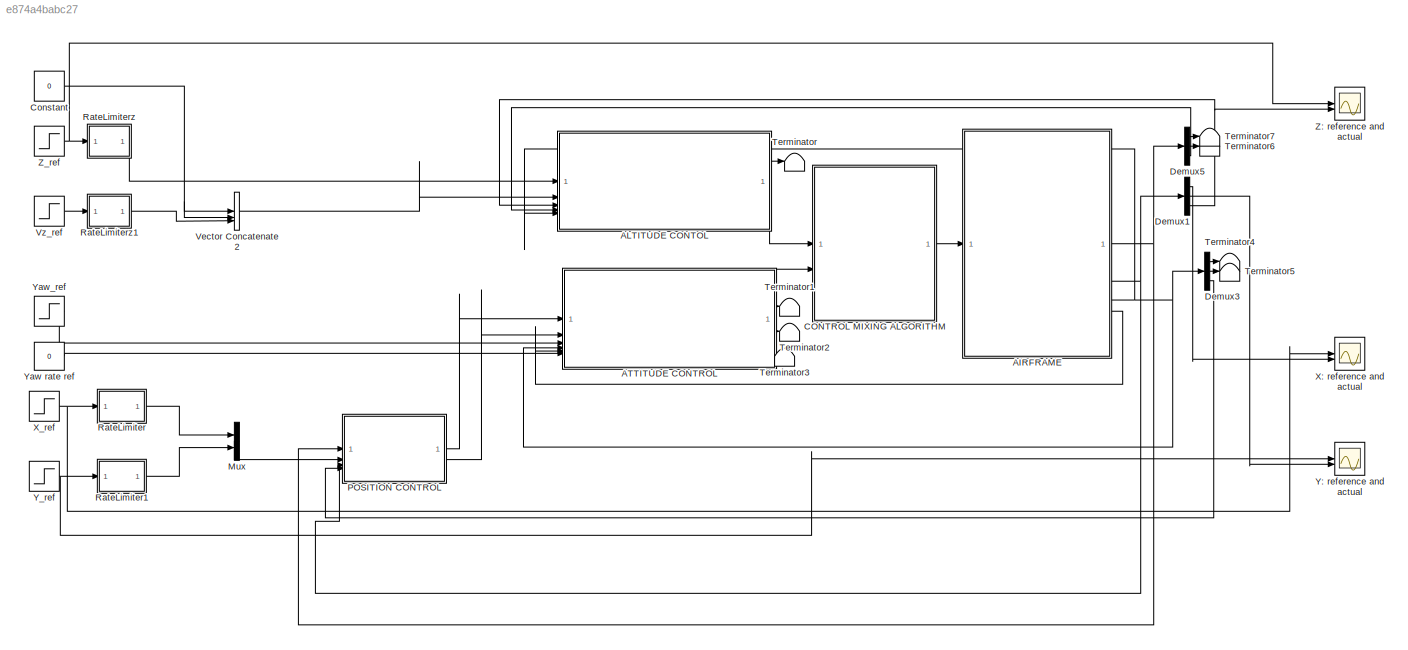
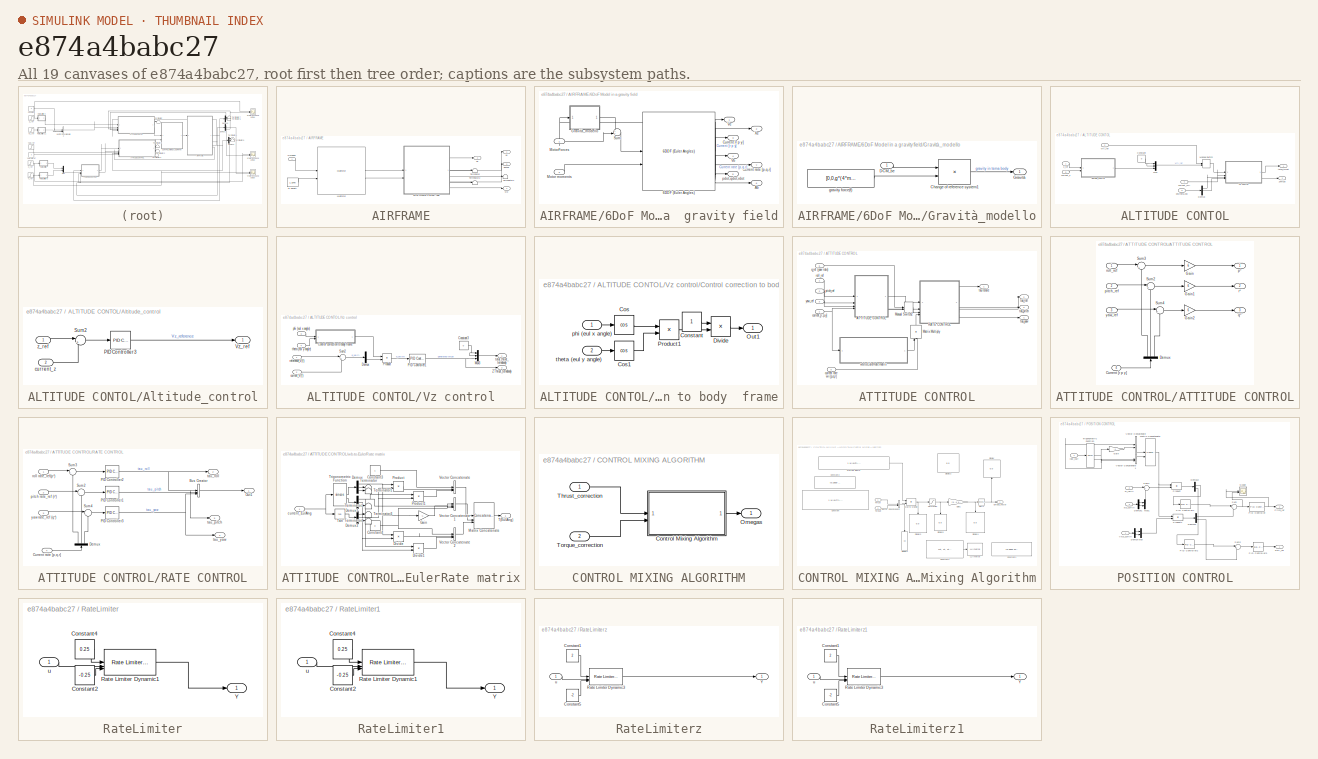
[diagram: thumbnail index - all 19 canvases of the model, root first then tree order]
MODEL slx_e874a4babc27
KIND model
CONFIG AbsTol = auto
CONFIG EnableMultiTasking = off
CONFIG FixedStep = auto
CONFIG MaxStep = 1e-2
CONFIG MinStep = auto
CONFIG RelTol = 1e-6
CONFIG SampleTimeConstraint = Unconstrained
CONFIG SolverName = VariableStepAuto
CONFIG StartTime = 0.0
CONFIG StopTime = 10
BLOCK [SubSystem] AIRFRAME
BLOCK [SubSystem] AIRFRAME/6DoF Model in a  gravity field
BLOCK [Reference] AIRFRAME/6DoF Model in a  gravity field/6DOF (Euler Angles)  REF=shared6dof/6DOF (Euler Angles)
  SourceBlock = shared6dof/6DOF (Euler Angles)
  SourceType = 6DOF EoM (Body Axis)
BLOCK [Outport] AIRFRAME/6DoF Model in a  gravity field/Ab
  Port = 6
BLOCK [Outport] AIRFRAME/6DoF Model in a  gravity field/Current [r p y]
  Port = 3
BLOCK [Outport] AIRFRAME/6DoF Model in a  gravity field/Current rate [p,q,r]
  Port = 7
BLOCK [SubSystem] AIRFRAME/6DoF Model in a  gravity field/Gravità_modello
BLOCK [Product] AIRFRAME/6DoF Model in a  gravity field/Gravità_modello/Change of reference system1
  Multiplication = Matrix(*)
BLOCK [Inport] AIRFRAME/6DoF Model in a  gravity field/Gravità_modello/DCM_be
BLOCK [Outport] AIRFRAME/6DoF Model in a  gravity field/Gravità_modello/Gravità
BLOCK [Constant] AIRFRAME/6DoF Model in a  gravity field/Gravità_modello/gravity force(f)
  Value = [0,0,g*(4*m+m1+m2+m3+m4)]'
BLOCK [Inport] AIRFRAME/6DoF Model in a  gravity field/Motor moments
  Port = 2
BLOCK [Inport] AIRFRAME/6DoF Model in a  gravity field/MotorForces
BLOCK [Sum] AIRFRAME/6DoF Model in a  gravity field/Sum
  Inputs = ++|
BLOCK [Outport] AIRFRAME/6DoF Model in a  gravity field/Vb
  Port = 4
BLOCK [Outport] AIRFRAME/6DoF Model in a  gravity field/Ve
BLOCK [Outport] AIRFRAME/6DoF Model in a  gravity field/Xe
  Port = 2
BLOCK [Outport] AIRFRAME/6DoF Model in a  gravity field/pdot,qdot,rdot
  Port = 5
BLOCK [Constant] AIRFRAME/Air density
  Value = 1.1840
BLOCK [Outport] AIRFRAME/EulAng
  Port = 3
BLOCK [Reference] AIRFRAME/Multirotor  REF=aerolibpropulsion2/Multirotor
  LibrarySourceBlock = aerolibrotor/Rotor
  SourceBlock = aerolibpropulsion2/Multirotor
  SourceType = Multirotor
BLOCK [Inport] AIRFRAME/Omegas
BLOCK [Terminator] AIRFRAME/Terminator
BLOCK [Terminator] AIRFRAME/Terminator1
BLOCK [Terminator] AIRFRAME/Terminator2
BLOCK [Outport] AIRFRAME/Ve
BLOCK [Outport] AIRFRAME/Xe
  Port = 2
BLOCK [Outport] AIRFRAME/wb
  Port = 4
BLOCK [SubSystem] ALTITUDE CONTOL
BLOCK [SubSystem] ALTITUDE CONTOL/Altitude_control
BLOCK [Reference] ALTITUDE CONTOL/Altitude_control/PID Controller3  REF=slpidlib/PID Controller
  SourceBlock = slpidlib/PID Controller
  SourceType = PID 1dof
BLOCK [Sum] ALTITUDE CONTOL/Altitude_control/Sum2
  Inputs = |+-
BLOCK [Outport] ALTITUDE CONTOL/Altitude_control/Vz_ref
BLOCK [Inport] ALTITUDE CONTOL/Altitude_control/current_z
  Port = 2
BLOCK [Inport] ALTITUDE CONTOL/Altitude_control/z_ref
BLOCK [Constant] ALTITUDE CONTOL/Constant
  Value = 0
BLOCK [Demux] ALTITUDE CONTOL/Demux
  Outputs = 3
BLOCK [ManualSwitch] ALTITUDE CONTOL/Manual Switch
  CurrentSetting = 0
BLOCK [Mux] ALTITUDE CONTOL/Mux
  DisplayOption = bar
  Inputs = 3
BLOCK [Inport] ALTITUDE CONTOL/V(f)_ref
  Port = 2
BLOCK [SubSystem] ALTITUDE CONTOL/Vz control
BLOCK [Constant] ALTITUDE CONTOL/Vz control/Constant3
  Value = 0
BLOCK [SubSystem] ALTITUDE CONTOL/Vz control/Control correction to body  frame
BLOCK [Constant] ALTITUDE CONTOL/Vz control/Control correction to body  frame/Constant
BLOCK [Trigonometry] ALTITUDE CONTOL/Vz control/Control correction to body  frame/Cos
  Operator = cos
BLOCK [Trigonometry] ALTITUDE CONTOL/Vz control/Control correction to body  frame/Cos1
  Operator = cos
BLOCK [Product] ALTITUDE CONTOL/Vz control/Control correction to body  frame/Divide
  Inputs = */
BLOCK [Outport] ALTITUDE CONTOL/Vz control/Control correction to body  frame/Out1
BLOCK [Product] ALTITUDE CONTOL/Vz control/Control correction to body  frame/Product1
BLOCK [Inport] ALTITUDE CONTOL/Vz control/Control correction to body  frame/phi (eul x angle)
BLOCK [Inport] ALTITUDE CONTOL/Vz control/Control correction to body  frame/theta (eul y angle)
  Port = 2
BLOCK [Demux] ALTITUDE CONTOL/Vz control/Demux
  Outputs = 3
BLOCK [Mux] ALTITUDE CONTOL/Vz control/Mux3
  DisplayOption = bar
  Inputs = 3
BLOCK [Reference] ALTITUDE CONTOL/Vz control/PID Controller1  REF=slpidlib/PID Controller
  LibrarySourceBlock = simulink/Continuous/PID Controller
  SourceBlock = slpidlib/PID Controller
  SourceType = PID 1dof
BLOCK [Product] ALTITUDE CONTOL/Vz control/Product
BLOCK [Sum] ALTITUDE CONTOL/Vz control/Sum2
  Inputs = |+-
BLOCK [Outport] ALTITUDE CONTOL/Vz control/ZThrust_ternabody
  Port = 2
BLOCK [Inport] ALTITUDE CONTOL/Vz control/current_V(f)
  Port = 2
BLOCK [Inport] ALTITUDE CONTOL/Vz control/phi (eul x angle)
  Port = 3
BLOCK [Inport] ALTITUDE CONTOL/Vz control/reference_V(f)
BLOCK [Inport] ALTITUDE CONTOL/Vz control/theta (eul y angle)
  Port = 4
BLOCK [Outport] ALTITUDE CONTOL/Vz control/total_thrust_ternabody
BLOCK [Outport] ALTITUDE CONTOL/ZThrust
  Port = 2
BLOCK [Inport] ALTITUDE CONTOL/current_V(f)
  Port = 4
BLOCK [Inport] ALTITUDE CONTOL/current_z
  Port = 3
BLOCK [Inport] ALTITUDE CONTOL/phi,theta,psi
  Port = 5
BLOCK [Outport] ALTITUDE CONTOL/total_thrust
BLOCK [Inport] ALTITUDE CONTOL/z_ref
BLOCK [SubSystem] ATTITUDE CONTROL
BLOCK [SubSystem] ATTITUDE CONTROL/ATTITUDE CONTROL
BLOCK [Inport] ATTITUDE CONTROL/ATTITUDE CONTROL/Current [r p y]
  Port = 4
BLOCK [Demux] ATTITUDE CONTROL/ATTITUDE CONTROL/Demux
  NameLocation = right
  Outputs = 3
BLOCK [Gain] ATTITUDE CONTROL/ATTITUDE CONTROL/Gain
  Gain = 6
BLOCK [Gain] ATTITUDE CONTROL/ATTITUDE CONTROL/Gain1
  Gain = 6
BLOCK [Gain] ATTITUDE CONTROL/ATTITUDE CONTROL/Gain2
  Gain = 6
BLOCK [Sum] ATTITUDE CONTROL/ATTITUDE CONTROL/Sum2
  Inputs = |+-
BLOCK [Sum] ATTITUDE CONTROL/ATTITUDE CONTROL/Sum3
  Inputs = |+-
BLOCK [Sum] ATTITUDE CONTROL/ATTITUDE CONTROL/Sum4
  Inputs = |+-
BLOCK [Inport] ATTITUDE CONTROL/ATTITUDE CONTROL/pitch_ref
  Port = 2
BLOCK [Outport] ATTITUDE CONTROL/ATTITUDE CONTROL/p°
BLOCK [Outport] ATTITUDE CONTROL/ATTITUDE CONTROL/q°
  Port = 3
BLOCK [Inport] ATTITUDE CONTROL/ATTITUDE CONTROL/roll_ref
BLOCK [Outport] ATTITUDE CONTROL/ATTITUDE CONTROL/r°
  Port = 2
BLOCK [Inport] ATTITUDE CONTROL/ATTITUDE CONTROL/yaw_ref
  Port = 3
BLOCK [ManualSwitch] ATTITUDE CONTROL/Manual Switch2
  CurrentSetting = 0
BLOCK [Product] ATTITUDE CONTROL/Matrix Multiply
  Multiplication = Matrix(*)
  NameLocation = right
BLOCK [SubSystem] ATTITUDE CONTROL/RATE CONTROL
BLOCK [Inport] ATTITUDE CONTROL/RATE CONTROL/ roll rate_ref(p°)
BLOCK [BusCreator] ATTITUDE CONTROL/RATE CONTROL/Bus Creator
  DisplayOption = bar
  InheritFromInputs = on
  Inputs = 3
BLOCK [Inport] ATTITUDE CONTROL/RATE CONTROL/Current rate [p,q,r]
  Port = 4
BLOCK [Demux] ATTITUDE CONTROL/RATE CONTROL/Demux
  NameLocation = right
  Outputs = 3
BLOCK [Outport] ATTITUDE CONTROL/RATE CONTROL/Out1
BLOCK [Reference] ATTITUDE CONTROL/RATE CONTROL/PID Controller1  REF=slpidlib/PID Controller
  SourceBlock = slpidlib/PID Controller
  SourceType = PID 1dof
BLOCK [Reference] ATTITUDE CONTROL/RATE CONTROL/PID Controller2  REF=slpidlib/PID Controller
  SourceBlock = slpidlib/PID Controller
  SourceType = PID 1dof
BLOCK [Reference] ATTITUDE CONTROL/RATE CONTROL/PID Controller3  REF=slpidlib/PID Controller
  SourceBlock = slpidlib/PID Controller
  SourceType = PID 1dof
BLOCK [Sum] ATTITUDE CONTROL/RATE CONTROL/Sum2
  Inputs = |+-
BLOCK [Sum] ATTITUDE CONTROL/RATE CONTROL/Sum3
  Inputs = |+-
BLOCK [Sum] ATTITUDE CONTROL/RATE CONTROL/Sum4
  Inputs = |+-
BLOCK [Inport] ATTITUDE CONTROL/RATE CONTROL/pitch rate_ref (r°)
  Port = 2
BLOCK [Outport] ATTITUDE CONTROL/RATE CONTROL/tau_pitch
  Port = 3
BLOCK [Outport] ATTITUDE CONTROL/RATE CONTROL/tau_roll
  Port = 2
BLOCK [Outport] ATTITUDE CONTROL/RATE CONTROL/tau_yaw
  Port = 4
BLOCK [Inport] ATTITUDE CONTROL/RATE CONTROL/yaw rate_ref (q°)
  Port = 3
BLOCK [Inport] ATTITUDE CONTROL/current rate w=[p,q,r]
  Port = 5
BLOCK [Inport] ATTITUDE CONTROL/current_[r,p,y]
  Port = 4
BLOCK [Inport] ATTITUDE CONTROL/pitch_ref
  Port = 2
BLOCK [Inport] ATTITUDE CONTROL/q_ref (yaw rate)
  Port = 6
BLOCK [Inport] ATTITUDE CONTROL/roll_ref
BLOCK [Outport] ATTITUDE CONTROL/tau totale
BLOCK [Outport] ATTITUDE CONTROL/tau_pitch
  Port = 3
BLOCK [Outport] ATTITUDE CONTROL/tau_roll
  Port = 2
BLOCK [Outport] ATTITUDE CONTROL/tau_yaw
  Port = 4
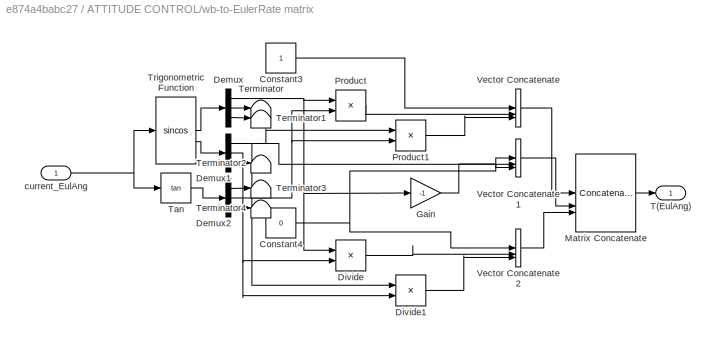
BLOCK [SubSystem] ATTITUDE CONTROL/wb-to-EulerRate matrix
BLOCK [Constant] ATTITUDE CONTROL/wb-to-EulerRate matrix/Constant3
BLOCK [Constant] ATTITUDE CONTROL/wb-to-EulerRate matrix/Constant4
  Value = 0
BLOCK [Demux] ATTITUDE CONTROL/wb-to-EulerRate matrix/Demux
  Outputs = 3
BLOCK [Demux] ATTITUDE CONTROL/wb-to-EulerRate matrix/Demux1
  Outputs = 3
BLOCK [Demux] ATTITUDE CONTROL/wb-to-EulerRate matrix/Demux2
  Outputs = 3
BLOCK [Product] ATTITUDE CONTROL/wb-to-EulerRate matrix/Divide
  Inputs = */
BLOCK [Product] ATTITUDE CONTROL/wb-to-EulerRate matrix/Divide1
  Inputs = */
BLOCK [Gain] ATTITUDE CONTROL/wb-to-EulerRate matrix/Gain
  Gain = -1
BLOCK [Concatenate] ATTITUDE CONTROL/wb-to-EulerRate matrix/Matrix Concatenate
  Mode = Multidimensional array
  NumInputs = 3
BLOCK [Product] ATTITUDE CONTROL/wb-to-EulerRate matrix/Product
BLOCK [Product] ATTITUDE CONTROL/wb-to-EulerRate matrix/Product1
BLOCK [Outport] ATTITUDE CONTROL/wb-to-EulerRate matrix/T(EulAng)
BLOCK [Trigonometry] ATTITUDE CONTROL/wb-to-EulerRate matrix/Tan
  Operator = tan
BLOCK [Terminator] ATTITUDE CONTROL/wb-to-EulerRate matrix/Terminator
BLOCK [Terminator] ATTITUDE CONTROL/wb-to-EulerRate matrix/Terminator1
BLOCK [Terminator] ATTITUDE CONTROL/wb-to-EulerRate matrix/Terminator2
BLOCK [Terminator] ATTITUDE CONTROL/wb-to-EulerRate matrix/Terminator3
BLOCK [Terminator] ATTITUDE CONTROL/wb-to-EulerRate matrix/Terminator4
BLOCK [Trigonometry] ATTITUDE CONTROL/wb-to-EulerRate matrix/Trigonometric Function
  Operator = sincos
BLOCK [Concatenate] ATTITUDE CONTROL/wb-to-EulerRate matrix/Vector Concatenate
  ConcatenateDimension = 2
  Mode = Multidimensional array
  NumInputs = 3
BLOCK [Concatenate] ATTITUDE CONTROL/wb-to-EulerRate matrix/Vector Concatenate1
  ConcatenateDimension = 2
  Mode = Multidimensional array
  NumInputs = 3
BLOCK [Concatenate] ATTITUDE CONTROL/wb-to-EulerRate matrix/Vector Concatenate2
  ConcatenateDimension = 2
  Mode = Multidimensional array
  NumInputs = 3
BLOCK [Inport] ATTITUDE CONTROL/wb-to-EulerRate matrix/current_EulAng
BLOCK [Inport] ATTITUDE CONTROL/yaw_ref
  Port = 3
BLOCK [SubSystem] CONTROL MIXING ALGORITHM
BLOCK [SubSystem] CONTROL MIXING ALGORITHM/Control Mixing Algorithm
BLOCK [Reference] CONTROL MIXING ALGORITHM/Control Mixing Algorithm/ LU Inverse  REF=dspinverses/ LU Inverse
  Commented = on
  SourceBlock = dspinverses/ LU Inverse
  SourceType = LU Inverse
BLOCK [Constant] CONTROL MIXING ALGORITHM/Control Mixing Algorithm/Constant
  Commented = on
  Value = [-1/(4*Ct),  1/(4*Ct*dx),  1/(4*Ct*dy),  1/(4*Cq); -1/(4*Ct), -1/(4*Ct*dx),  1/(4*Ct*dy), -1/(4*Cq); -1/(4*Ct), -1/(4*Ct*dx), -1/(4*Ct*dy),  1/(4*Cq);-1/(4*Ct),  1/(4*Ct*dx), -1/(4*Ct*dy), -1/(4*Cq)]
BLOCK [Constant] CONTROL MIXING ALGORITHM/Control Mixing Algorithm/Constant1
  Value = [0.2500  103.5736   -5.6659   -5.6659\n    0.2500 -103.5736   -5.6659    5.6659\n    0.2500  103.5736    5.6659    5.6659\n    0.2500 -103.5736    5.6659   -5.6659]
BLOCK [Constant] CONTROL MIXING ALGORITHM/Control Mixing Algorithm/Constant2
  Commented = on
  Value = [0.2500    5.6659    5.6659  103.5736\n;    0.2500   -5.6659    5.6659 -103.5736\n  ;  0.2500   -5.6659   -5.6659  103.5736\n ;   0.2500    5.6659   -5.6659 -103.5736]
  VectorParams1D = off
BLOCK [Constant] CONTROL MIXING ALGORITHM/Control Mixing Algorithm/Constant3
  Commented = on
  Value = [ct, ct, ct, ct; dx*ct, -dx*ct, -dx*ct, dx*ct; dy*ct, dy*ct,-dy*ct, -dy*ct ; cq, -cq, cq, -cq]
BLOCK [Display] CONTROL MIXING ALGORITHM/Control Mixing Algorithm/Display
  Decimation = 1
  NameLocation = right
BLOCK [Display] CONTROL MIXING ALGORITHM/Control Mixing Algorithm/Display1
  Decimation = 1
  NameLocation = left
BLOCK [Display] CONTROL MIXING ALGORITHM/Control Mixing Algorithm/Display2
  Decimation = 1
BLOCK [Display] CONTROL MIXING ALGORITHM/Control Mixing Algorithm/Display3
  Decimation = 1
  NameLocation = left
BLOCK [Display] CONTROL MIXING ALGORITHM/Control Mixing Algorithm/Display4
  Decimation = 1
  NameLocation = left
BLOCK [Display] CONTROL MIXING ALGORITHM/Control Mixing Algorithm/Display5
  Decimation = 1
  NameLocation = left
BLOCK [Gain] CONTROL MIXING ALGORITHM/Control Mixing Algorithm/Gain1
  Gain = [1 -1 1 -1]
BLOCK [Constant] CONTROL MIXING ALGORITHM/Control Mixing Algorithm/Matrice giusta
  Value = [-1/(4*ct), 1/(4*ct*dx), 1/(4*ct*dy) ,  1/(4*cq); -1/(4*ct),  -1/(4*ct*dx), 1/(4*ct*dy), -1/(4*cq); -1/(4*ct),  -1/(4*ct*dx),  -1/(4*ct*dy),  1/(4*cq); -1/(4*ct), 1/(4*ct*dx),  -1/(4*ct*dy), -1/(4*cq)]
  VectorParams1D = off
BLOCK [Product] CONTROL MIXING ALGORITHM/Control Mixing Algorithm/Matrix Multiply
  Multiplication = Matrix(*)
BLOCK [Outport] CONTROL MIXING ALGORITHM/Control Mixing Algorithm/Omega_vector
BLOCK [Saturate] CONTROL MIXING ALGORITHM/Control Mixing Algorithm/Saturation
  LowerLimit = 0
  UpperLimit = inf
BLOCK [Sqrt] CONTROL MIXING ALGORITHM/Control Mixing Algorithm/Sqrt1
  Operator = signedSqrt
BLOCK [Inport] CONTROL MIXING ALGORITHM/Control Mixing Algorithm/Thrust
BLOCK [Inport] CONTROL MIXING ALGORITHM/Control Mixing Algorithm/Torque
  Port = 2
BLOCK [Concatenate] CONTROL MIXING ALGORITHM/Control Mixing Algorithm/Vector Concatenate
BLOCK [Outport] CONTROL MIXING ALGORITHM/Omegas
BLOCK [Inport] CONTROL MIXING ALGORITHM/Thrust_correction
BLOCK [Inport] CONTROL MIXING ALGORITHM/Torque_correction
  Port = 2
BLOCK [Constant] Constant
  Value = 0
BLOCK [Demux] Demux1
  Outputs = 3
BLOCK [Demux] Demux3
  Outputs = 3
BLOCK [Demux] Demux5
  Outputs = 3
BLOCK [Mux] Mux
  DisplayOption = bar
  Inputs = 2
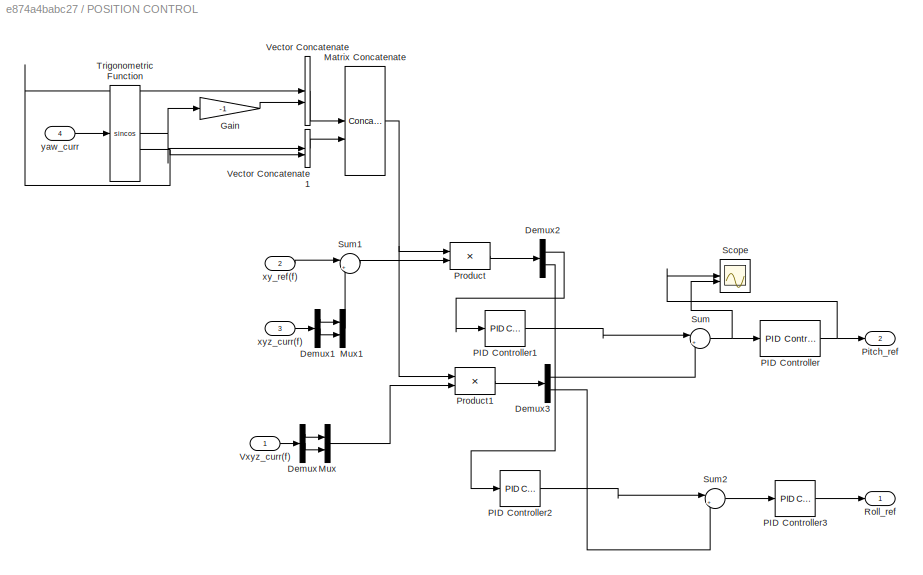
BLOCK [SubSystem] POSITION CONTROL
BLOCK [Demux] POSITION CONTROL/Demux
  Outputs = 3
BLOCK [Demux] POSITION CONTROL/Demux1
  Outputs = 3
BLOCK [Demux] POSITION CONTROL/Demux2
  Outputs = 2
BLOCK [Demux] POSITION CONTROL/Demux3
  Outputs = 2
BLOCK [Gain] POSITION CONTROL/Gain
  Gain = -1
BLOCK [Concatenate] POSITION CONTROL/Matrix Concatenate
  ConcatenateDimension = 2
  Mode = Multidimensional array
BLOCK [Mux] POSITION CONTROL/Mux
  DisplayOption = bar
  Inputs = 2
BLOCK [Mux] POSITION CONTROL/Mux1
  DisplayOption = bar
  Inputs = 2
BLOCK [Reference] POSITION CONTROL/PID Controller  REF=slpidlib/PID Controller
  LibrarySourceBlock = simulink/Continuous/PID Controller
  SourceBlock = slpidlib/PID Controller
  SourceType = PID 1dof
BLOCK [Reference] POSITION CONTROL/PID Controller1  REF=slpidlib/PID Controller
  LibrarySourceBlock = simulink/Continuous/PID Controller
  SourceBlock = slpidlib/PID Controller
  SourceType = PID 1dof
BLOCK [Reference] POSITION CONTROL/PID Controller2  REF=slpidlib/PID Controller
  LibrarySourceBlock = simulink/Continuous/PID Controller
  SourceBlock = slpidlib/PID Controller
  SourceType = PID 1dof
BLOCK [Reference] POSITION CONTROL/PID Controller3  REF=slpidlib/PID Controller
  LibrarySourceBlock = simulink/Continuous/PID Controller
  SourceBlock = slpidlib/PID Controller
  SourceType = PID 1dof
BLOCK [Outport] POSITION CONTROL/Pitch_ref
  Port = 2
BLOCK [Product] POSITION CONTROL/Product
  Multiplication = Matrix(*)
  OutDataTypeStr = single
  RndMeth = Zero
BLOCK [Product] POSITION CONTROL/Product1
  Multiplication = Matrix(*)
  OutDataTypeStr = single
  RndMeth = Zero
BLOCK [Outport] POSITION CONTROL/Roll_ref
BLOCK [Scope] POSITION CONTROL/Scope
  Floating = off
  NumInputPorts = 2
  ScopeSpecificationString = Simulink.scopes.TimeScopeBlockCfg('CurrentConfiguration', extmgr.ConfigurationSet(extmgr.Configuration('Core','General UI',true),extmgr.Configuration('Core','Source UI',true),extmgr.Configuration('Sources','WiredSimulink',true,'DataLoggingVariableName','ScopeData3'),extmgr.Configuration('Visuals','Time Domain',true,'SerializedDisplays',{struct('MinYLimReal','-1.98266','MaxYLimReal','2.13598','YLab...<+1419ch>
BLOCK [Sum] POSITION CONTROL/Sum
  Inputs = |+-
BLOCK [Sum] POSITION CONTROL/Sum1
  Inputs = |+-
BLOCK [Sum] POSITION CONTROL/Sum2
  Inputs = |+-
BLOCK [Trigonometry] POSITION CONTROL/Trigonometric Function
  Operator = sincos
BLOCK [Concatenate] POSITION CONTROL/Vector Concatenate
BLOCK [Concatenate] POSITION CONTROL/Vector Concatenate1
BLOCK [Inport] POSITION CONTROL/Vxyz_curr(f)
BLOCK [Inport] POSITION CONTROL/xy_ref(f)
  Port = 2
BLOCK [Inport] POSITION CONTROL/xyz_curr(f)
  Port = 3
BLOCK [Inport] POSITION CONTROL/yaw_curr
  Port = 4
BLOCK [SubSystem] RateLimiter
BLOCK [Constant] RateLimiter/Constant2
  Value = -0.25
BLOCK [Constant] RateLimiter/Constant4
  Value = 0.25
BLOCK [Reference] RateLimiter/Rate Limiter Dynamic1  REF=simulink/Discontinuities/Rate Limiter
Dynamic
  SourceBlock = simulink/Discontinuities/Rate Limiter\nDynamic
  SourceType = Rate Limiter Dynamic
BLOCK [Outport] RateLimiter/Y
BLOCK [Inport] RateLimiter/u
BLOCK [SubSystem] RateLimiter1
BLOCK [Constant] RateLimiter1/Constant2
  Value = -0.25
BLOCK [Constant] RateLimiter1/Constant4
  Value = 0.25
BLOCK [Reference] RateLimiter1/Rate Limiter Dynamic1  REF=simulink/Discontinuities/Rate Limiter
Dynamic
  SourceBlock = simulink/Discontinuities/Rate Limiter\nDynamic
  SourceType = Rate Limiter Dynamic
BLOCK [Outport] RateLimiter1/Y
BLOCK [Inport] RateLimiter1/u
BLOCK [SubSystem] RateLimiterz
BLOCK [Constant] RateLimiterz/Constant1
  Value = 2
BLOCK [Constant] RateLimiterz/Constant5
  Value = -2
BLOCK [Reference] RateLimiterz/Rate Limiter Dynamic3  REF=simulink/Discontinuities/Rate Limiter
Dynamic
  SourceBlock = simulink/Discontinuities/Rate Limiter\nDynamic
  SourceType = Rate Limiter Dynamic
BLOCK [Outport] RateLimiterz/Y
BLOCK [Inport] RateLimiterz/u
BLOCK [SubSystem] RateLimiterz1
BLOCK [Constant] RateLimiterz1/Constant1
  Value = 2
BLOCK [Constant] RateLimiterz1/Constant5
  Value = -2
BLOCK [Reference] RateLimiterz1/Rate Limiter Dynamic3  REF=simulink/Discontinuities/Rate Limiter
Dynamic
  SourceBlock = simulink/Discontinuities/Rate Limiter\nDynamic
  SourceType = Rate Limiter Dynamic
BLOCK [Outport] RateLimiterz1/Y
BLOCK [Inport] RateLimiterz1/u
BLOCK [Terminator] Terminator
BLOCK [Terminator] Terminator1
BLOCK [Terminator] Terminator2
BLOCK [Terminator] Terminator3
BLOCK [Terminator] Terminator4
BLOCK [Terminator] Terminator5
BLOCK [Terminator] Terminator6
BLOCK [Terminator] Terminator7
BLOCK [Concatenate] Vector Concatenate2
  NumInputs = 3
BLOCK [Step] Vz_ref
  After = -1
  SampleTime = 0
BLOCK [Scope] X: reference and actual
  Floating = off
  NumInputPorts = 2
  ScopeSpecificationString = Simulink.scopes.TimeScopeBlockCfg('CurrentConfiguration', extmgr.ConfigurationSet(extmgr.Configuration('Core','General UI',true),extmgr.Configuration('Core','Source UI',true),extmgr.Configuration('Sources','WiredSimulink',true,'DataLoggingVariableName','ScopeData1'),extmgr.Configuration('Visuals','Time Domain',true,'SerializedDisplays',{struct('MinYLimReal','-0.0625','MaxYLimReal','0.5625','YLabel...<+1395ch>
BLOCK [Step] X_ref
  After = 0.5
  SampleTime = 0
  Time = 2
BLOCK [Scope] Y: reference and actual
  Floating = off
  NumInputPorts = 2
  ScopeSpecificationString = Simulink.scopes.TimeScopeBlockCfg('CurrentConfiguration', extmgr.ConfigurationSet(extmgr.Configuration('Core','General UI',true),extmgr.Configuration('Core','Source UI',true),extmgr.Configuration('Sources','WiredSimulink',true,'DataLoggingVariableName','ScopeData2'),extmgr.Configuration('Visuals','Time Domain',true,'SerializedDisplays',{struct('MinYLimReal','-0.225','MaxYLimReal','0.025','YLabelRe...<+1389ch>
BLOCK [Step] Y_ref
  After = -0.2
  SampleTime = 0
  Time = 5
BLOCK [Constant] Yaw rate ref
  Value = 0
BLOCK [Step] Yaw_ref
  After = pi/4
  SampleTime = 0
  Time = 6
BLOCK [Scope] Z: reference and actual
  Floating = off
  NumInputPorts = 2
  ScopeSpecificationString = Simulink.scopes.TimeScopeBlockCfg('CurrentConfiguration', extmgr.ConfigurationSet(extmgr.Configuration('Core','General UI',true),extmgr.Configuration('Core','Source UI',true),extmgr.Configuration('Sources','WiredSimulink',true,'DataLoggingVariableName','ScopeData3'),extmgr.Configuration('Visuals','Time Domain',true,'SerializedDisplays',{struct('MinYLimReal','-1.17444','MaxYLimReal','0.19271','YLab...<+1401ch>
BLOCK [Step] Z_ref
  After = -1
  SampleTime = 0
LINE AIRFRAME/6DoF Model in a  gravity field/6DOF (Euler Angles):1 -> AIRFRAME/6DoF Model in a  gravity field/Ve:1
LINE AIRFRAME/6DoF Model in a  gravity field/6DOF (Euler Angles):2 -> AIRFRAME/6DoF Model in a  gravity field/Xe:1
LINE AIRFRAME/6DoF Model in a  gravity field/6DOF (Euler Angles):3 -> AIRFRAME/6DoF Model in a  gravity field/Current [r p y]:1
LINE AIRFRAME/6DoF Model in a  gravity field/6DOF (Euler Angles):4 -> AIRFRAME/6DoF Model in a  gravity field/Gravità_modello:1
LINE AIRFRAME/6DoF Model in a  gravity field/6DOF (Euler Angles):5 -> AIRFRAME/6DoF Model in a  gravity field/Vb:1
LINE AIRFRAME/6DoF Model in a  gravity field/6DOF (Euler Angles):6 -> AIRFRAME/6DoF Model in a  gravity field/Current rate [p,q,r]:1
LINE AIRFRAME/6DoF Model in a  gravity field/6DOF (Euler Angles):7 -> AIRFRAME/6DoF Model in a  gravity field/pdot,qdot,rdot:1
LINE AIRFRAME/6DoF Model in a  gravity field/6DOF (Euler Angles):8 -> AIRFRAME/6DoF Model in a  gravity field/Ab:1
LINE AIRFRAME/6DoF Model in a  gravity field/Gravità_modello/Change of reference system1:1 -> AIRFRAME/6DoF Model in a  gravity field/Gravità_modello/Gravità:1
LINE AIRFRAME/6DoF Model in a  gravity field/Gravità_modello/DCM_be:1 -> AIRFRAME/6DoF Model in a  gravity field/Gravità_modello/Change of reference system1:1
LINE AIRFRAME/6DoF Model in a  gravity field/Gravità_modello/gravity force(f):1 -> AIRFRAME/6DoF Model in a  gravity field/Gravità_modello/Change of reference system1:2
LINE AIRFRAME/6DoF Model in a  gravity field/Gravità_modello:1 -> AIRFRAME/6DoF Model in a  gravity field/Sum:1
LINE AIRFRAME/6DoF Model in a  gravity field/Motor moments:1 -> AIRFRAME/6DoF Model in a  gravity field/6DOF (Euler Angles):2
LINE AIRFRAME/6DoF Model in a  gravity field/MotorForces:1 -> AIRFRAME/6DoF Model in a  gravity field/Sum:2
LINE AIRFRAME/6DoF Model in a  gravity field/Sum:1 -> AIRFRAME/6DoF Model in a  gravity field/6DOF (Euler Angles):1
LINE AIRFRAME/6DoF Model in a  gravity field:1 -> AIRFRAME/Ve:1
LINE AIRFRAME/6DoF Model in a  gravity field:2 -> AIRFRAME/Xe:1
LINE AIRFRAME/6DoF Model in a  gravity field:3 -> AIRFRAME/EulAng:1
LINE AIRFRAME/6DoF Model in a  gravity field:4 -> AIRFRAME/Terminator:1
LINE AIRFRAME/6DoF Model in a  gravity field:5 -> AIRFRAME/Terminator1:1
LINE AIRFRAME/6DoF Model in a  gravity field:6 -> AIRFRAME/Terminator2:1
LINE AIRFRAME/6DoF Model in a  gravity field:7 -> AIRFRAME/wb:1
LINE AIRFRAME/Air density:1 -> AIRFRAME/Multirotor:2
LINE AIRFRAME/Multirotor:1 -> AIRFRAME/6DoF Model in a  gravity field:1
LINE AIRFRAME/Multirotor:2 -> AIRFRAME/6DoF Model in a  gravity field:2
LINE AIRFRAME/Omegas:1 -> AIRFRAME/Multirotor:1
NET AIRFRAME:1 -> Demux5:1, POSITION CONTROL:1
NET AIRFRAME:2 -> Demux1:1, POSITION CONTROL:3
NET AIRFRAME:3 -> ALTITUDE CONTOL:5, ATTITUDE CONTROL:4, Demux3:1
LINE AIRFRAME:4 -> ATTITUDE CONTROL:5
LINE ALTITUDE CONTOL/Altitude_control/PID Controller3:1 -> ALTITUDE CONTOL/Altitude_control/Vz_ref:1
LINE ALTITUDE CONTOL/Altitude_control/Sum2:1 -> ALTITUDE CONTOL/Altitude_control/PID Controller3:1
LINE ALTITUDE CONTOL/Altitude_control/current_z:1 -> ALTITUDE CONTOL/Altitude_control/Sum2:2
LINE ALTITUDE CONTOL/Altitude_control/z_ref:1 -> ALTITUDE CONTOL/Altitude_control/Sum2:1
LINE ALTITUDE CONTOL/Altitude_control:1 -> ALTITUDE CONTOL/Mux:3
NET ALTITUDE CONTOL/Constant:1 -> ALTITUDE CONTOL/Mux:1, ALTITUDE CONTOL/Mux:2
LINE ALTITUDE CONTOL/Demux:1 -> ALTITUDE CONTOL/Vz control:3
LINE ALTITUDE CONTOL/Demux:2 -> ALTITUDE CONTOL/Vz control:4
LINE ALTITUDE CONTOL/Manual Switch:1 -> ALTITUDE CONTOL/Vz control:1
LINE ALTITUDE CONTOL/Mux:1 -> ALTITUDE CONTOL/Manual Switch:2
LINE ALTITUDE CONTOL/V(f)_ref:1 -> ALTITUDE CONTOL/Manual Switch:1
NET ALTITUDE CONTOL/Vz control/Constant3:1 -> ALTITUDE CONTOL/Vz control/Mux3:1, ALTITUDE CONTOL/Vz control/Mux3:2
LINE ALTITUDE CONTOL/Vz control/Control correction to body  frame/Constant:1 -> ALTITUDE CONTOL/Vz control/Control correction to body  frame/Divide:1
LINE ALTITUDE CONTOL/Vz control/Control correction to body  frame/Cos1:1 -> ALTITUDE CONTOL/Vz control/Control correction to body  frame/Product1:2
LINE ALTITUDE CONTOL/Vz control/Control correction to body  frame/Cos:1 -> ALTITUDE CONTOL/Vz control/Control correction to body  frame/Product1:1
LINE ALTITUDE CONTOL/Vz control/Control correction to body  frame/Divide:1 -> ALTITUDE CONTOL/Vz control/Control correction to body  frame/Out1:1
LINE ALTITUDE CONTOL/Vz control/Control correction to body  frame/Product1:1 -> ALTITUDE CONTOL/Vz control/Control correction to body  frame/Divide:2
LINE ALTITUDE CONTOL/Vz control/Control correction to body  frame/phi (eul x angle):1 -> ALTITUDE CONTOL/Vz control/Control correction to body  frame/Cos:1
LINE ALTITUDE CONTOL/Vz control/Control correction to body  frame/theta (eul y angle):1 -> ALTITUDE CONTOL/Vz control/Control correction to body  frame/Cos1:1
LINE ALTITUDE CONTOL/Vz control/Control correction to body  frame:1 -> ALTITUDE CONTOL/Vz control/Product:1
LINE ALTITUDE CONTOL/Vz control/Demux:3 -> ALTITUDE CONTOL/Vz control/Product:2
LINE ALTITUDE CONTOL/Vz control/Mux3:1 -> ALTITUDE CONTOL/Vz control/total_thrust_ternabody:1
NET ALTITUDE CONTOL/Vz control/PID Controller1:1 -> ALTITUDE CONTOL/Vz control/Mux3:3, ALTITUDE CONTOL/Vz control/ZThrust_ternabody:1
LINE ALTITUDE CONTOL/Vz control/Product:1 -> ALTITUDE CONTOL/Vz control/PID Controller1:1
LINE ALTITUDE CONTOL/Vz control/Sum2:1 -> ALTITUDE CONTOL/Vz control/Demux:1
LINE ALTITUDE CONTOL/Vz control/current_V(f):1 -> ALTITUDE CONTOL/Vz control/Sum2:2
LINE ALTITUDE CONTOL/Vz control/phi (eul x angle):1 -> ALTITUDE CONTOL/Vz control/Control correction to body  frame:1
LINE ALTITUDE CONTOL/Vz control/reference_V(f):1 -> ALTITUDE CONTOL/Vz control/Sum2:1
LINE ALTITUDE CONTOL/Vz control/theta (eul y angle):1 -> ALTITUDE CONTOL/Vz control/Control correction to body  frame:2
LINE ALTITUDE CONTOL/Vz control:1 -> ALTITUDE CONTOL/total_thrust:1
LINE ALTITUDE CONTOL/Vz control:2 -> ALTITUDE CONTOL/ZThrust:1
LINE ALTITUDE CONTOL/current_V(f):1 -> ALTITUDE CONTOL/Vz control:2
LINE ALTITUDE CONTOL/current_z:1 -> ALTITUDE CONTOL/Altitude_control:2
LINE ALTITUDE CONTOL/phi,theta,psi:1 -> ALTITUDE CONTOL/Demux:1
LINE ALTITUDE CONTOL/z_ref:1 -> ALTITUDE CONTOL/Altitude_control:1
LINE ALTITUDE CONTOL:1 -> Terminator:1
LINE ALTITUDE CONTOL:2 -> CONTROL MIXING ALGORITHM:1
LINE ATTITUDE CONTROL/ATTITUDE CONTROL/Current [r p y]:1 -> ATTITUDE CONTROL/ATTITUDE CONTROL/Demux:1
LINE ATTITUDE CONTROL/ATTITUDE CONTROL/Demux:1 -> ATTITUDE CONTROL/ATTITUDE CONTROL/Sum3:2
LINE ATTITUDE CONTROL/ATTITUDE CONTROL/Demux:2 -> ATTITUDE CONTROL/ATTITUDE CONTROL/Sum2:2
LINE ATTITUDE CONTROL/ATTITUDE CONTROL/Demux:3 -> ATTITUDE CONTROL/ATTITUDE CONTROL/Sum4:2
LINE ATTITUDE CONTROL/ATTITUDE CONTROL/Gain1:1 -> ATTITUDE CONTROL/ATTITUDE CONTROL/r°:1
LINE ATTITUDE CONTROL/ATTITUDE CONTROL/Gain2:1 -> ATTITUDE CONTROL/ATTITUDE CONTROL/q°:1
LINE ATTITUDE CONTROL/ATTITUDE CONTROL/Gain:1 -> ATTITUDE CONTROL/ATTITUDE CONTROL/p°:1
LINE ATTITUDE CONTROL/ATTITUDE CONTROL/Sum2:1 -> ATTITUDE CONTROL/ATTITUDE CONTROL/Gain1:1
LINE ATTITUDE CONTROL/ATTITUDE CONTROL/Sum3:1 -> ATTITUDE CONTROL/ATTITUDE CONTROL/Gain:1
LINE ATTITUDE CONTROL/ATTITUDE CONTROL/Sum4:1 -> ATTITUDE CONTROL/ATTITUDE CONTROL/Gain2:1
LINE ATTITUDE CONTROL/ATTITUDE CONTROL/pitch_ref:1 -> ATTITUDE CONTROL/ATTITUDE CONTROL/Sum2:1
LINE ATTITUDE CONTROL/ATTITUDE CONTROL/roll_ref:1 -> ATTITUDE CONTROL/ATTITUDE CONTROL/Sum3:1
LINE ATTITUDE CONTROL/ATTITUDE CONTROL/yaw_ref:1 -> ATTITUDE CONTROL/ATTITUDE CONTROL/Sum4:1
LINE ATTITUDE CONTROL/ATTITUDE CONTROL:1 -> ATTITUDE CONTROL/RATE CONTROL:1
LINE ATTITUDE CONTROL/ATTITUDE CONTROL:2 -> ATTITUDE CONTROL/RATE CONTROL:2
LINE ATTITUDE CONTROL/ATTITUDE CONTROL:3 -> ATTITUDE CONTROL/Manual Switch2:2
LINE ATTITUDE CONTROL/Manual Switch2:1 -> ATTITUDE CONTROL/RATE CONTROL:3
LINE ATTITUDE CONTROL/Matrix Multiply:1 -> ATTITUDE CONTROL/RATE CONTROL:4
LINE ATTITUDE CONTROL/RATE CONTROL/ roll rate_ref(p°):1 -> ATTITUDE CONTROL/RATE CONTROL/Sum3:1
LINE ATTITUDE CONTROL/RATE CONTROL/Bus Creator:1 -> ATTITUDE CONTROL/RATE CONTROL/Out1:1
LINE ATTITUDE CONTROL/RATE CONTROL/Current rate [p,q,r]:1 -> ATTITUDE CONTROL/RATE CONTROL/Demux:1
LINE ATTITUDE CONTROL/RATE CONTROL/Demux:1 -> ATTITUDE CONTROL/RATE CONTROL/Sum3:2
LINE ATTITUDE CONTROL/RATE CONTROL/Demux:2 -> ATTITUDE CONTROL/RATE CONTROL/Sum2:2
LINE ATTITUDE CONTROL/RATE CONTROL/Demux:3 -> ATTITUDE CONTROL/RATE CONTROL/Sum4:2
NET ATTITUDE CONTROL/RATE CONTROL/PID Controller1:1 -> ATTITUDE CONTROL/RATE CONTROL/Bus Creator:2, ATTITUDE CONTROL/RATE CONTROL/tau_pitch:1
NET ATTITUDE CONTROL/RATE CONTROL/PID Controller2:1 -> ATTITUDE CONTROL/RATE CONTROL/Bus Creator:1, ATTITUDE CONTROL/RATE CONTROL/tau_roll:1
NET ATTITUDE CONTROL/RATE CONTROL/PID Controller3:1 -> ATTITUDE CONTROL/RATE CONTROL/Bus Creator:3, ATTITUDE CONTROL/RATE CONTROL/tau_yaw:1
LINE ATTITUDE CONTROL/RATE CONTROL/Sum2:1 -> ATTITUDE CONTROL/RATE CONTROL/PID Controller1:1
LINE ATTITUDE CONTROL/RATE CONTROL/Sum3:1 -> ATTITUDE CONTROL/RATE CONTROL/PID Controller2:1
LINE ATTITUDE CONTROL/RATE CONTROL/Sum4:1 -> ATTITUDE CONTROL/RATE CONTROL/PID Controller3:1
LINE ATTITUDE CONTROL/RATE CONTROL/pitch rate_ref (r°):1 -> ATTITUDE CONTROL/RATE CONTROL/Sum2:1
LINE ATTITUDE CONTROL/RATE CONTROL/yaw rate_ref (q°):1 -> ATTITUDE CONTROL/RATE CONTROL/Sum4:1
LINE ATTITUDE CONTROL/RATE CONTROL:1 -> ATTITUDE CONTROL/tau totale:1
LINE ATTITUDE CONTROL/RATE CONTROL:2 -> ATTITUDE CONTROL/tau_roll:1
LINE ATTITUDE CONTROL/RATE CONTROL:3 -> ATTITUDE CONTROL/tau_pitch:1
LINE ATTITUDE CONTROL/RATE CONTROL:4 -> ATTITUDE CONTROL/tau_yaw:1
LINE ATTITUDE CONTROL/current rate w=[p,q,r]:1 -> ATTITUDE CONTROL/Matrix Multiply:2
NET ATTITUDE CONTROL/current_[r,p,y]:1 -> ATTITUDE CONTROL/ATTITUDE CONTROL:4, ATTITUDE CONTROL/wb-to-EulerRate matrix:1
LINE ATTITUDE CONTROL/pitch_ref:1 -> ATTITUDE CONTROL/ATTITUDE CONTROL:2
LINE ATTITUDE CONTROL/q_ref (yaw rate):1 -> ATTITUDE CONTROL/Manual Switch2:1
LINE ATTITUDE CONTROL/roll_ref:1 -> ATTITUDE CONTROL/ATTITUDE CONTROL:1
LINE ATTITUDE CONTROL/wb-to-EulerRate matrix/Constant3:1 -> ATTITUDE CONTROL/wb-to-EulerRate matrix/Vector Concatenate:1
NET ATTITUDE CONTROL/wb-to-EulerRate matrix/Constant4:1 -> ATTITUDE CONTROL/wb-to-EulerRate matrix/Vector Concatenate1:1, ATTITUDE CONTROL/wb-to-EulerRate matrix/Vector Concatenate2:1
NET ATTITUDE CONTROL/wb-to-EulerRate matrix/Demux1:1 -> ATTITUDE CONTROL/wb-to-EulerRate matrix/Divide1:1, ATTITUDE CONTROL/wb-to-EulerRate matrix/Product1:1, ATTITUDE CONTROL/wb-to-EulerRate matrix/Vector Concatenate1:2
NET ATTITUDE CONTROL/wb-to-EulerRate matrix/Demux1:2 -> ATTITUDE CONTROL/wb-to-EulerRate matrix/Divide1:2, ATTITUDE CONTROL/wb-to-EulerRate matrix/Divide:2
LINE ATTITUDE CONTROL/wb-to-EulerRate matrix/Demux1:3 -> ATTITUDE CONTROL/wb-to-EulerRate matrix/Terminator2:1
LINE ATTITUDE CONTROL/wb-to-EulerRate matrix/Demux2:1 -> ATTITUDE CONTROL/wb-to-EulerRate matrix/Terminator3:1
NET ATTITUDE CONTROL/wb-to-EulerRate matrix/Demux2:2 -> ATTITUDE CONTROL/wb-to-EulerRate matrix/Product1:2, ATTITUDE CONTROL/wb-to-EulerRate matrix/Product:2
LINE ATTITUDE CONTROL/wb-to-EulerRate matrix/Demux2:3 -> ATTITUDE CONTROL/wb-to-EulerRate matrix/Terminator4:1
NET ATTITUDE CONTROL/wb-to-EulerRate matrix/Demux:1 -> ATTITUDE CONTROL/wb-to-EulerRate matrix/Divide:1, ATTITUDE CONTROL/wb-to-EulerRate matrix/Gain:1, ATTITUDE CONTROL/wb-to-EulerRate matrix/Product:1
LINE ATTITUDE CONTROL/wb-to-EulerRate matrix/Demux:2 -> ATTITUDE CONTROL/wb-to-EulerRate matrix/Terminator:1
LINE ATTITUDE CONTROL/wb-to-EulerRate matrix/Demux:3 -> ATTITUDE CONTROL/wb-to-EulerRate matrix/Terminator1:1
LINE ATTITUDE CONTROL/wb-to-EulerRate matrix/Divide1:1 -> ATTITUDE CONTROL/wb-to-EulerRate matrix/Vector Concatenate2:3
LINE ATTITUDE CONTROL/wb-to-EulerRate matrix/Divide:1 -> ATTITUDE CONTROL/wb-to-EulerRate matrix/Vector Concatenate2:2
LINE ATTITUDE CONTROL/wb-to-EulerRate matrix/Gain:1 -> ATTITUDE CONTROL/wb-to-EulerRate matrix/Vector Concatenate1:3
LINE ATTITUDE CONTROL/wb-to-EulerRate matrix/Matrix Concatenate:1 -> ATTITUDE CONTROL/wb-to-EulerRate matrix/T(EulAng):1
LINE ATTITUDE CONTROL/wb-to-EulerRate matrix/Product1:1 -> ATTITUDE CONTROL/wb-to-EulerRate matrix/Vector Concatenate:3
LINE ATTITUDE CONTROL/wb-to-EulerRate matrix/Product:1 -> ATTITUDE CONTROL/wb-to-EulerRate matrix/Vector Concatenate:2
LINE ATTITUDE CONTROL/wb-to-EulerRate matrix/Tan:1 -> ATTITUDE CONTROL/wb-to-EulerRate matrix/Demux2:1
LINE ATTITUDE CONTROL/wb-to-EulerRate matrix/Trigonometric Function:1 -> ATTITUDE CONTROL/wb-to-EulerRate matrix/Demux:1
LINE ATTITUDE CONTROL/wb-to-EulerRate matrix/Trigonometric Function:2 -> ATTITUDE CONTROL/wb-to-EulerRate matrix/Demux1:1
LINE ATTITUDE CONTROL/wb-to-EulerRate matrix/Vector Concatenate1:1 -> ATTITUDE CONTROL/wb-to-EulerRate matrix/Matrix Concatenate:2
LINE ATTITUDE CONTROL/wb-to-EulerRate matrix/Vector Concatenate2:1 -> ATTITUDE CONTROL/wb-to-EulerRate matrix/Matrix Concatenate:3
LINE ATTITUDE CONTROL/wb-to-EulerRate matrix/Vector Concatenate:1 -> ATTITUDE CONTROL/wb-to-EulerRate matrix/Matrix Concatenate:1
NET ATTITUDE CONTROL/wb-to-EulerRate matrix/current_EulAng:1 -> ATTITUDE CONTROL/wb-to-EulerRate matrix/Tan:1, ATTITUDE CONTROL/wb-to-EulerRate matrix/Trigonometric Function:1
LINE ATTITUDE CONTROL/wb-to-EulerRate matrix:1 -> ATTITUDE CONTROL/Matrix Multiply:1
LINE ATTITUDE CONTROL/yaw_ref:1 -> ATTITUDE CONTROL/ATTITUDE CONTROL:3
LINE ATTITUDE CONTROL:1 -> CONTROL MIXING ALGORITHM:2
LINE ATTITUDE CONTROL:2 -> Terminator1:1
LINE ATTITUDE CONTROL:3 -> Terminator2:1
LINE CONTROL MIXING ALGORITHM/Control Mixing Algorithm/Constant3:1 -> CONTROL MIXING ALGORITHM/Control Mixing Algorithm/ LU Inverse:1
NET CONTROL MIXING ALGORITHM/Control Mixing Algorithm/Gain1:1 -> CONTROL MIXING ALGORITHM/Control Mixing Algorithm/Display4:1, CONTROL MIXING ALGORITHM/Control Mixing Algorithm/Sqrt1:1
LINE CONTROL MIXING ALGORITHM/Control Mixing Algorithm/Matrice giusta:1 -> CONTROL MIXING ALGORITHM/Control Mixing Algorithm/Matrix Multiply:1
NET CONTROL MIXING ALGORITHM/Control Mixing Algorithm/Matrix Multiply:1 -> CONTROL MIXING ALGORITHM/Control Mixing Algorithm/Display3:1, CONTROL MIXING ALGORITHM/Control Mixing Algorithm/Saturation:1
NET CONTROL MIXING ALGORITHM/Control Mixing Algorithm/Saturation:1 -> CONTROL MIXING ALGORITHM/Control Mixing Algorithm/Display5:1, CONTROL MIXING ALGORITHM/Control Mixing Algorithm/Gain1:1
NET CONTROL MIXING ALGORITHM/Control Mixing Algorithm/Sqrt1:1 -> CONTROL MIXING ALGORITHM/Control Mixing Algorithm/Display:1, CONTROL MIXING ALGORITHM/Control Mixing Algorithm/Omega_vector:1
LINE CONTROL MIXING ALGORITHM/Control Mixing Algorithm/Thrust:1 -> CONTROL MIXING ALGORITHM/Control Mixing Algorithm/Vector Concatenate:1
LINE CONTROL MIXING ALGORITHM/Control Mixing Algorithm/Torque:1 -> CONTROL MIXING ALGORITHM/Control Mixing Algorithm/Vector Concatenate:2
NET CONTROL MIXING ALGORITHM/Control Mixing Algorithm/Vector Concatenate:1 -> CONTROL MIXING ALGORITHM/Control Mixing Algorithm/Display1:1, CONTROL MIXING ALGORITHM/Control Mixing Algorithm/Matrix Multiply:2
LINE CONTROL MIXING ALGORITHM/Control Mixing Algorithm:1 -> CONTROL MIXING ALGORITHM/Omegas:1
LINE CONTROL MIXING ALGORITHM/Thrust_correction:1 -> CONTROL MIXING ALGORITHM/Control Mixing Algorithm:1
LINE CONTROL MIXING ALGORITHM/Torque_correction:1 -> CONTROL MIXING ALGORITHM/Control Mixing Algorithm:2
LINE CONTROL MIXING ALGORITHM:1 -> AIRFRAME:1
NET Constant:1 -> Vector Concatenate2:1, Vector Concatenate2:2
LINE Demux1:1 -> X: reference and actual:2
LINE Demux1:2 -> Y: reference and actual:2
NET Demux1:3 -> ALTITUDE CONTOL:3, Z: reference and actual:2
LINE Demux3:1 -> Terminator4:1
LINE Demux3:2 -> Terminator5:1
LINE Demux3:3 -> POSITION CONTROL:4
LINE Demux5:1 -> Terminator7:1
LINE Demux5:2 -> Terminator6:1
LINE Demux5:3 -> ALTITUDE CONTOL:4
LINE Mux:1 -> POSITION CONTROL:2
LINE POSITION CONTROL/Demux1:1 -> POSITION CONTROL/Mux1:1
LINE POSITION CONTROL/Demux1:2 -> POSITION CONTROL/Mux1:2
LINE POSITION CONTROL/Demux2:1 -> POSITION CONTROL/PID Controller1:1
LINE POSITION CONTROL/Demux2:2 -> POSITION CONTROL/PID Controller2:1
LINE POSITION CONTROL/Demux3:1 -> POSITION CONTROL/Sum:2
LINE POSITION CONTROL/Demux3:2 -> POSITION CONTROL/Sum2:2
LINE POSITION CONTROL/Demux:1 -> POSITION CONTROL/Mux:1
LINE POSITION CONTROL/Demux:2 -> POSITION CONTROL/Mux:2
LINE POSITION CONTROL/Gain:1 -> POSITION CONTROL/Vector Concatenate:2
NET POSITION CONTROL/Matrix Concatenate:1 -> POSITION CONTROL/Product1:1, POSITION CONTROL/Product:1
LINE POSITION CONTROL/Mux1:1 -> POSITION CONTROL/Sum1:2
LINE POSITION CONTROL/Mux:1 -> POSITION CONTROL/Product1:2
LINE POSITION CONTROL/PID Controller1:1 -> POSITION CONTROL/Sum:1
LINE POSITION CONTROL/PID Controller2:1 -> POSITION CONTROL/Sum2:1
LINE POSITION CONTROL/PID Controller3:1 -> POSITION CONTROL/Roll_ref:1
NET POSITION CONTROL/PID Controller:1 -> POSITION CONTROL/Pitch_ref:1, POSITION CONTROL/Scope:1
LINE POSITION CONTROL/Product1:1 -> POSITION CONTROL/Demux3:1
LINE POSITION CONTROL/Product:1 -> POSITION CONTROL/Demux2:1
LINE POSITION CONTROL/Sum1:1 -> POSITION CONTROL/Product:2
LINE POSITION CONTROL/Sum2:1 -> POSITION CONTROL/PID Controller3:1
NET POSITION CONTROL/Sum:1 -> POSITION CONTROL/PID Controller:1, POSITION CONTROL/Scope:2
NET POSITION CONTROL/Trigonometric Function:1 -> POSITION CONTROL/Gain:1, POSITION CONTROL/Vector Concatenate1:1
NET POSITION CONTROL/Trigonometric Function:2 -> POSITION CONTROL/Vector Concatenate1:2, POSITION CONTROL/Vector Concatenate:1
LINE POSITION CONTROL/Vector Concatenate1:1 -> POSITION CONTROL/Matrix Concatenate:2
LINE POSITION CONTROL/Vector Concatenate:1 -> POSITION CONTROL/Matrix Concatenate:1
LINE POSITION CONTROL/Vxyz_curr(f):1 -> POSITION CONTROL/Demux:1
LINE POSITION CONTROL/xy_ref(f):1 -> POSITION CONTROL/Sum1:1
LINE POSITION CONTROL/xyz_curr(f):1 -> POSITION CONTROL/Demux1:1
LINE POSITION CONTROL/yaw_curr:1 -> POSITION CONTROL/Trigonometric Function:1
LINE POSITION CONTROL:1 -> ATTITUDE CONTROL:1
LINE POSITION CONTROL:2 -> ATTITUDE CONTROL:2
LINE RateLimiter/Constant2:1 -> RateLimiter/Rate Limiter Dynamic1:3
LINE RateLimiter/Constant4:1 -> RateLimiter/Rate Limiter Dynamic1:1
LINE RateLimiter/Rate Limiter Dynamic1:1 -> RateLimiter/Y:1
LINE RateLimiter/u:1 -> RateLimiter/Rate Limiter Dynamic1:2
LINE RateLimiter1/Constant2:1 -> RateLimiter1/Rate Limiter Dynamic1:3
LINE RateLimiter1/Constant4:1 -> RateLimiter1/Rate Limiter Dynamic1:1
LINE RateLimiter1/Rate Limiter Dynamic1:1 -> RateLimiter1/Y:1
LINE RateLimiter1/u:1 -> RateLimiter1/Rate Limiter Dynamic1:2
LINE RateLimiter1:1 -> Mux:2
LINE RateLimiter:1 -> Mux:1
LINE RateLimiterz/Constant1:1 -> RateLimiterz/Rate Limiter Dynamic3:1
LINE RateLimiterz/Constant5:1 -> RateLimiterz/Rate Limiter Dynamic3:3
LINE RateLimiterz/Rate Limiter Dynamic3:1 -> RateLimiterz/Y:1
LINE RateLimiterz/u:1 -> RateLimiterz/Rate Limiter Dynamic3:2
LINE RateLimiterz1/Constant1:1 -> RateLimiterz1/Rate Limiter Dynamic3:1
LINE RateLimiterz1/Constant5:1 -> RateLimiterz1/Rate Limiter Dynamic3:3
LINE RateLimiterz1/Rate Limiter Dynamic3:1 -> RateLimiterz1/Y:1
LINE RateLimiterz1/u:1 -> RateLimiterz1/Rate Limiter Dynamic3:2
LINE RateLimiterz1:1 -> Vector Concatenate2:3
LINE RateLimiterz:1 -> ALTITUDE CONTOL:1
LINE Vector Concatenate2:1 -> ALTITUDE CONTOL:2
LINE Vz_ref:1 -> RateLimiterz1:1
NET X_ref:1 -> RateLimiter:1, X: reference and actual:1
NET Y_ref:1 -> RateLimiter1:1, Y: reference and actual:1
LINE Yaw rate ref:1 -> ATTITUDE CONTROL:6
LINE Yaw_ref:1 -> ATTITUDE CONTROL:3
NET Z_ref:1 -> RateLimiterz:1, Z: reference and actual:1
note: NET lines group one-source signal fan-out (src -> all destinations, sorted); 1:1 wires keep LINE
